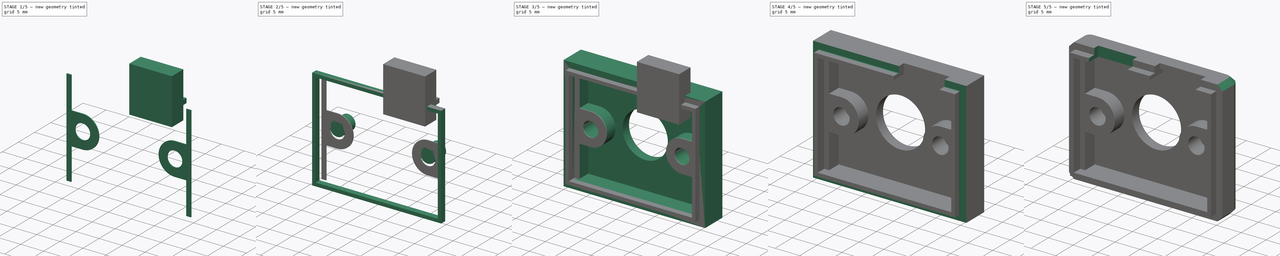
[diagram: build sequence overview — one tinted view per stage of 5, left to right]
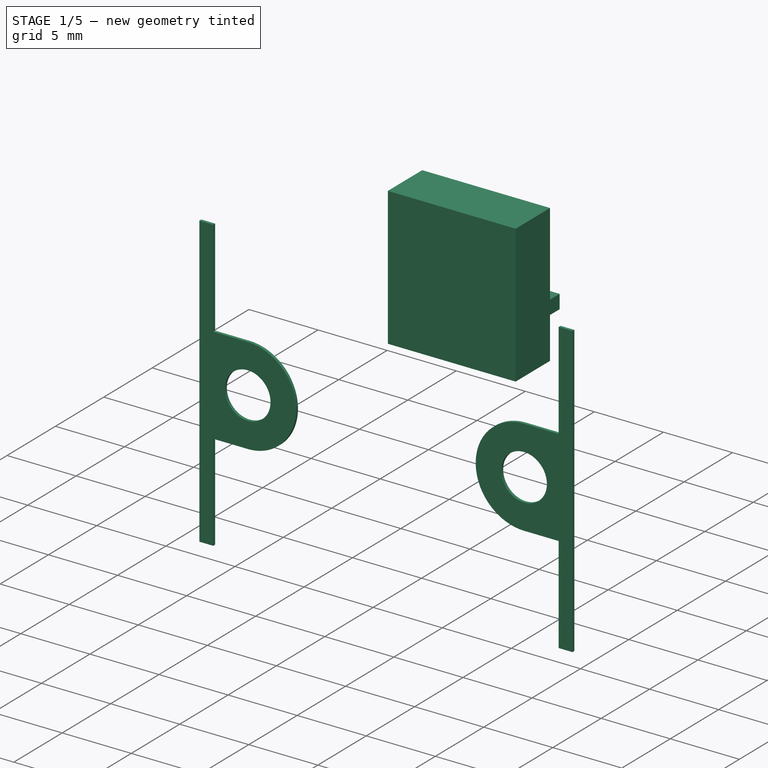
[diagram: stage 1 of 5 — iso view after this stage's code; geometry added in this stage tinted green]
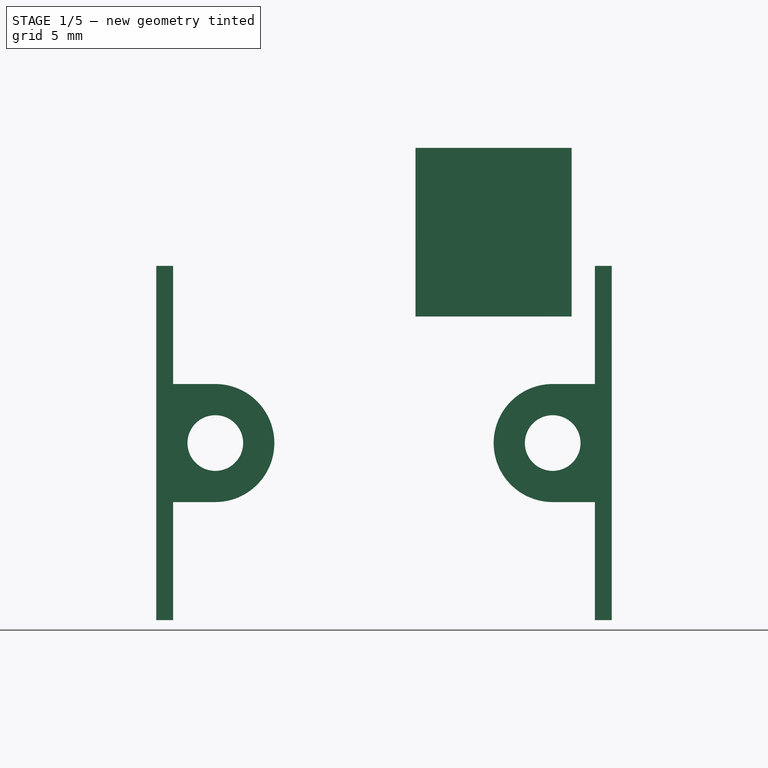
[diagram: stage 1 of 5 — front view after this stage's code; geometry added in this stage tinted green]
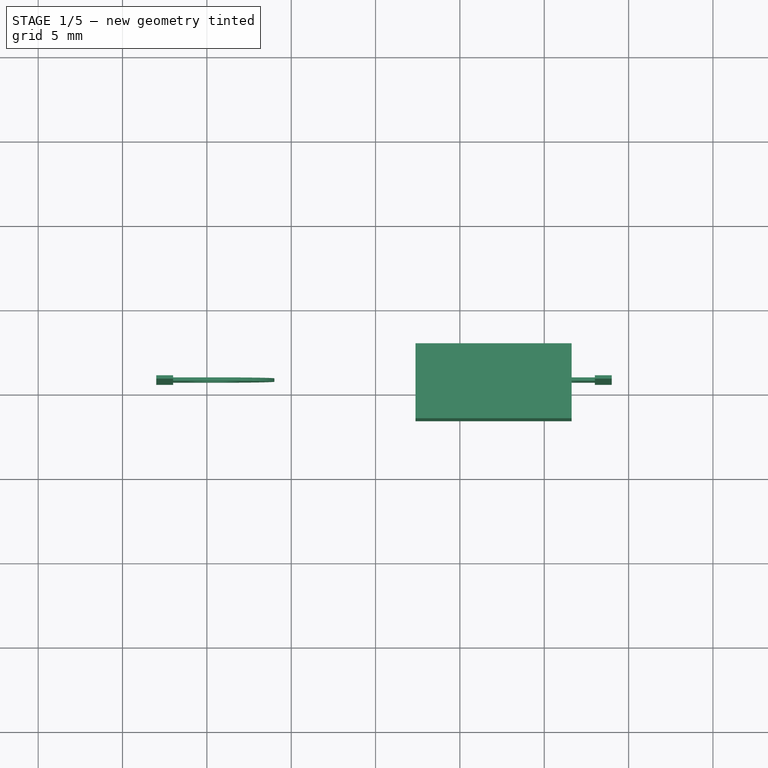
[diagram: stage 1 of 5 — top view after this stage's code; geometry added in this stage tinted green]
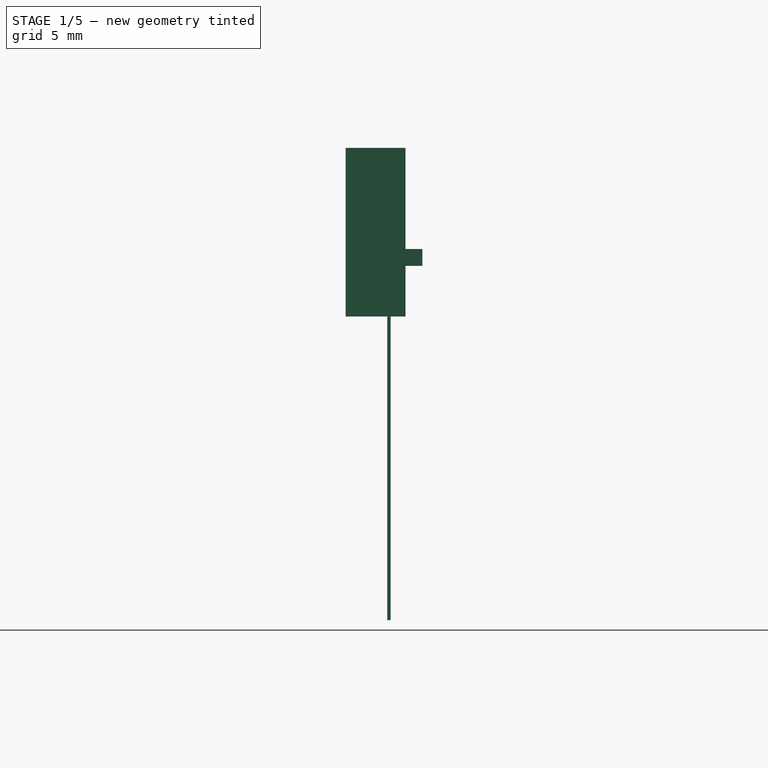
[diagram: stage 1 of 5 — right view after this stage's code; geometry added in this stage tinted green]
FCSTD DOCUMENT  (FreeCAD 0.18R16110 (Git))
Label: housing_v5_front
License: All rights reserved
LicenseURL: http://en.wikipedia.org/wiki/All_rights_reserved
objects: Part::Box×9, Part::Cut×7, Part::Feature×6, Sketcher::SketchObject×5, Part::MultiFuse×4, Part::Extrusion×4, PartDesign::Pad×3, PartDesign::Pocket×2, Part::Cylinder×2, PartDesign::Body×1, Part::Fillet×1, Part::Chamfer×1
note: 50 computed .brp shape members not serialized (recipe doc carries the construction recipe); baked Part::Feature solids carry a one-line shape summary decoded from their .brp

FEATURE [Part::Box] Box005  label="TypeC_cutout"
  AttacherType = Attacher::AttachEngine3D
  Height = 10
  Length = 9.25
  Placement = pos=(17.37,-0.87,20) rot=(0,0,1;0rad)
  Width = 2.55
FEATURE [Part::Box] Box008  label="TypeC_cutout_upper"
  AttacherType = Attacher::AttachEngine3D
  Height = 10
  Length = 9.25
  Placement = pos=(17.37,-1.87,20) rot=(0,0,1;0rad)
  Width = 2.55
FEATURE [Part::Box] Box  label="TypeC_extra_space"
  AttacherType = Attacher::AttachEngine3D
  Height = 1
  Length = 9.25
  Placement = pos=(17.37,1.68,23) rot=(0,0,1;0rad)
  Width = 1
FEATURE [Part::Feature] Face
  shape: bbox 6 x 2e-07 x 7 mm, 1 faces, 0 solids (baked)
FEATURE [Part::Feature] Face001
  shape: bbox 1 x 2e-07 x 21 mm, 1 faces, 0 solids (baked)
FEATURE [Part::Feature] Face002
  shape: bbox 6 x 2e-07 x 7 mm, 1 faces, 0 solids (baked)
FEATURE [Part::Feature] Face003
  shape: bbox 1 x 2e-07 x 21 mm, 1 faces, 0 solids (baked)
FEATURE [Part::Extrusion] Extrusion
  Base = -> Face
  Dir = (0,-0.2,-2.08e-14)
  DirMode = 0
  FaceMakerClass = Part::FaceMakerBullseye
  LengthFwd = 0
  LengthRev = 0
  Solid = true
  Symmetric = false
FEATURE [Part::Extrusion] Extrusion001
  Base = -> Face001
  Dir = (0,-0.2,-2.08e-14)
  DirMode = 0
  FaceMakerClass = Part::FaceMakerBullseye
  LengthFwd = 0
  LengthRev = 0
  Solid = true
  Symmetric = false
FEATURE [Part::Feature] Face004
  shape: bbox 6 x 2e-07 x 7 mm, 1 faces, 0 solids (baked)
FEATURE [Part::Extrusion] Extrusion002
  Base = -> Face004
  Dir = (0,-0.2,-2.08e-14)
  DirMode = 0
  FaceMakerClass = Part::FaceMakerBullseye
  LengthFwd = 0
  LengthRev = 0
  Solid = true
  Symmetric = false
FEATURE [Part::Feature] Face005
  shape: bbox 1 x 2e-07 x 21 mm, 1 faces, 0 solids (baked)
FEATURE [Part::Extrusion] Extrusion003
  Base = -> Face005
  Dir = (0,-0.2,-2.08e-14)
  DirMode = 0
  FaceMakerClass = Part::FaceMakerBullseye
  LengthFwd = 0
  LengthRev = 0
  Solid = true
  Symmetric = false
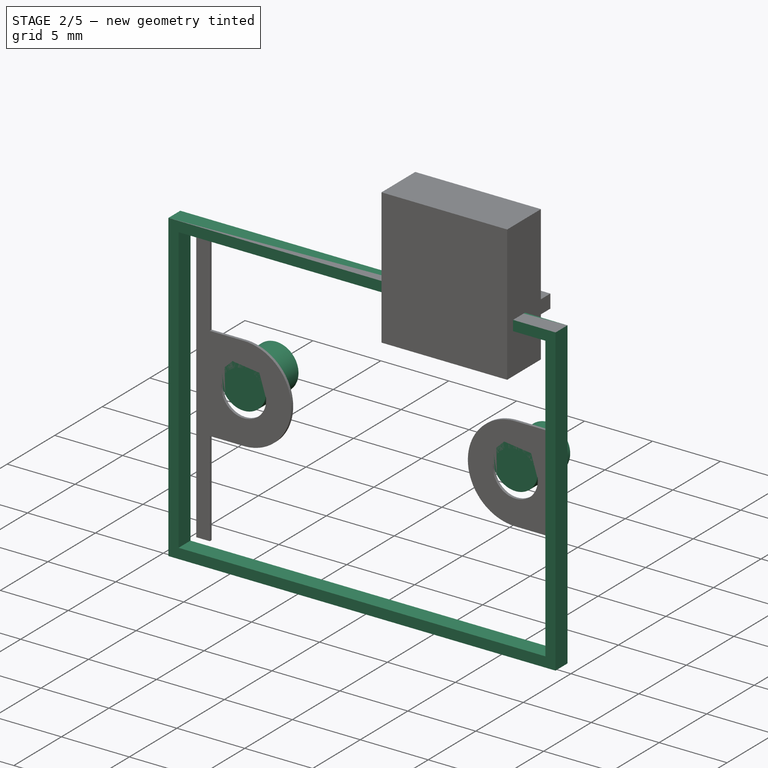
[diagram: stage 2 of 5 — iso view after this stage's code; geometry added in this stage tinted green]
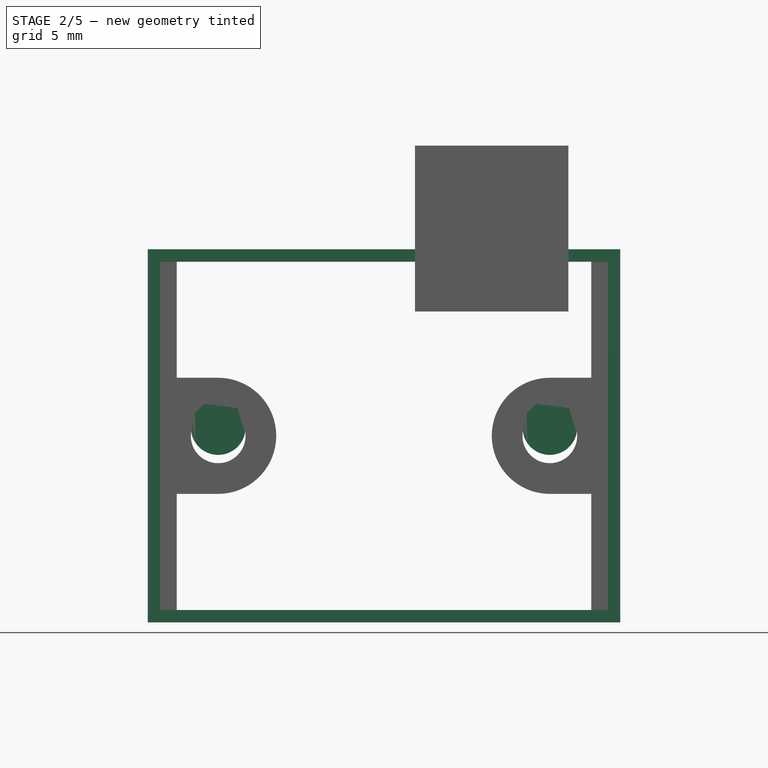
[diagram: stage 2 of 5 — front view after this stage's code; geometry added in this stage tinted green]
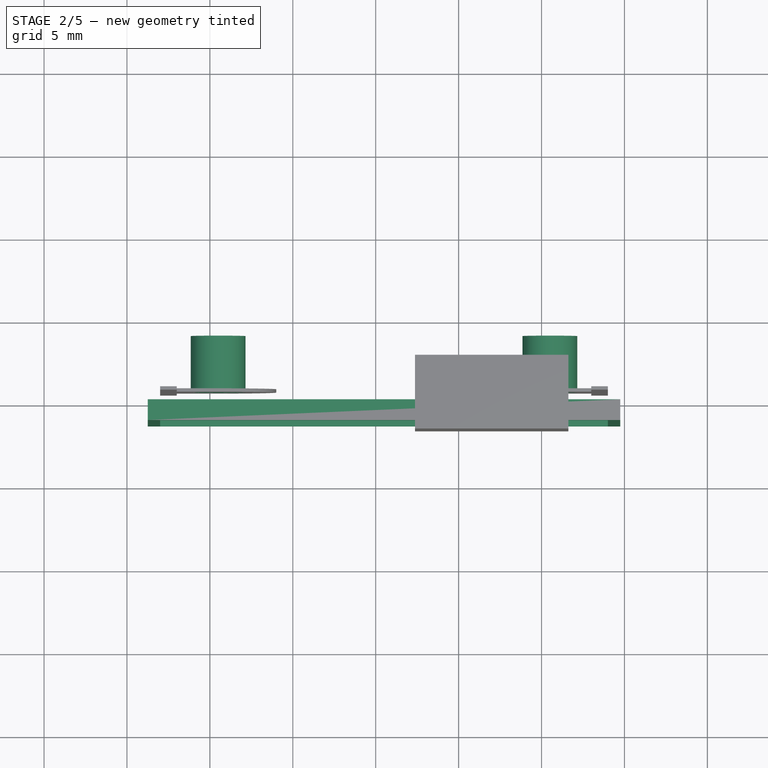
[diagram: stage 2 of 5 — top view after this stage's code; geometry added in this stage tinted green]
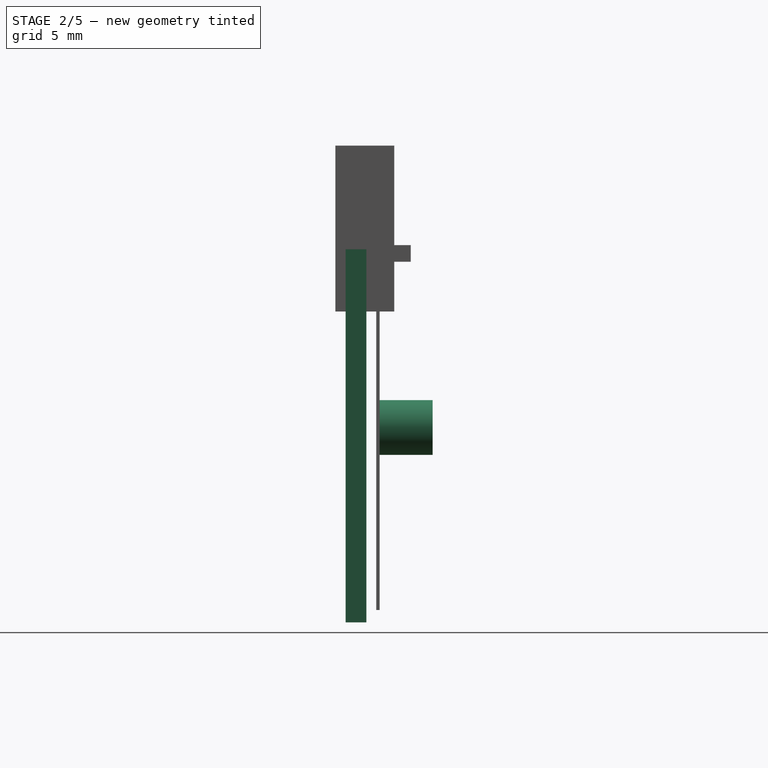
[diagram: stage 2 of 5 — right view after this stage's code; geometry added in this stage tinted green]
FEATURE [PartDesign::Body] Body
  Group = -> [Sketch,Sketch001,Sketch002,Sketch003,Sketch004,Pad,Pocket,Pad001,Pad002,Pocket001]
  Origin = -> Origin
  Tip = -> Pocket001
FEATURE [Part::Cylinder] Cylinder  label="leftScrewHole"
  Angle = 360
  AttacherType = Attacher::AttachEngine3D
  Height = 3.4
  Placement = pos=(25.5,4,13) rot=(1,0,0;1.5708rad)
  Radius = 1.65
FEATURE [Part::Cylinder] Cylinder001  label="rightScrewHole"
  Angle = 360
  AttacherType = Attacher::AttachEngine3D
  Height = 3.4
  Placement = pos=(5.5,4,13) rot=(1,0,0;1.5708rad)
  Radius = 1.65
FEATURE [Part::Box] Box001  label="Cube001"
  AttacherType = Attacher::AttachEngine3D
  Height = 22.5
  Length = 28.5
  Placement = pos=(1.25,0,1.25) rot=(0,0,1;0rad)
  Width = 1.25
FEATURE [Part::Box] Box002  label="Cube002"
  AttacherType = Attacher::AttachEngine3D
  Height = 21
  Length = 27
  Placement = pos=(2,0,2) rot=(0,0,1;0rad)
  Width = 1.25
FEATURE [Part::Cut] Cut001  label="latch"
  Base = -> Box001
  Placement = pos=(0,-1.25,0) rot=(0,0,1;0rad)
  Tool = -> Box002
FEATURE [Part::MultiFuse] Fusion002
  Shapes = -> [Box005,Box008]
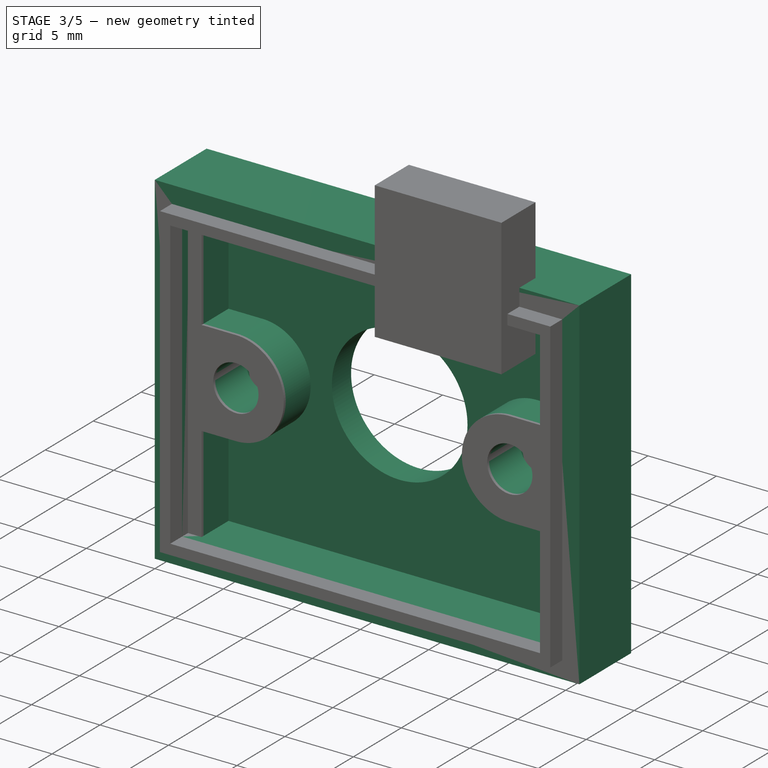
[diagram: stage 3 of 5 — iso view after this stage's code; geometry added in this stage tinted green]
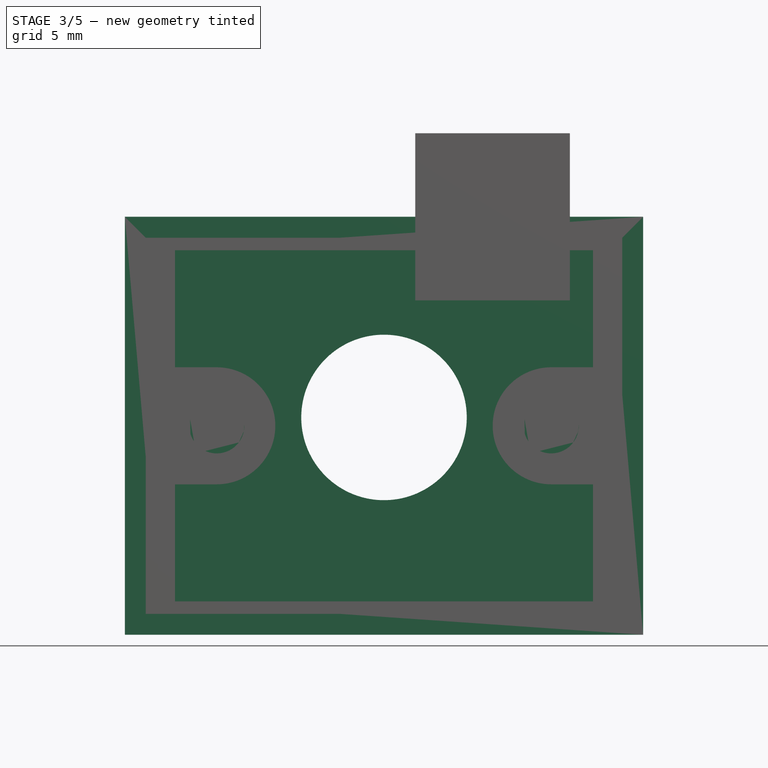
[diagram: stage 3 of 5 — front view after this stage's code; geometry added in this stage tinted green]
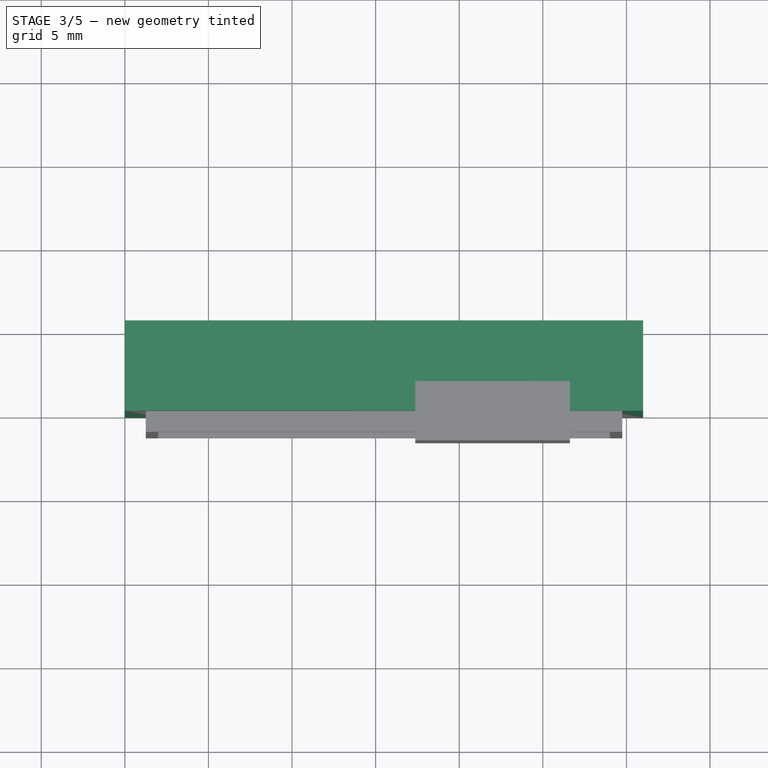
[diagram: stage 3 of 5 — top view after this stage's code; geometry added in this stage tinted green]
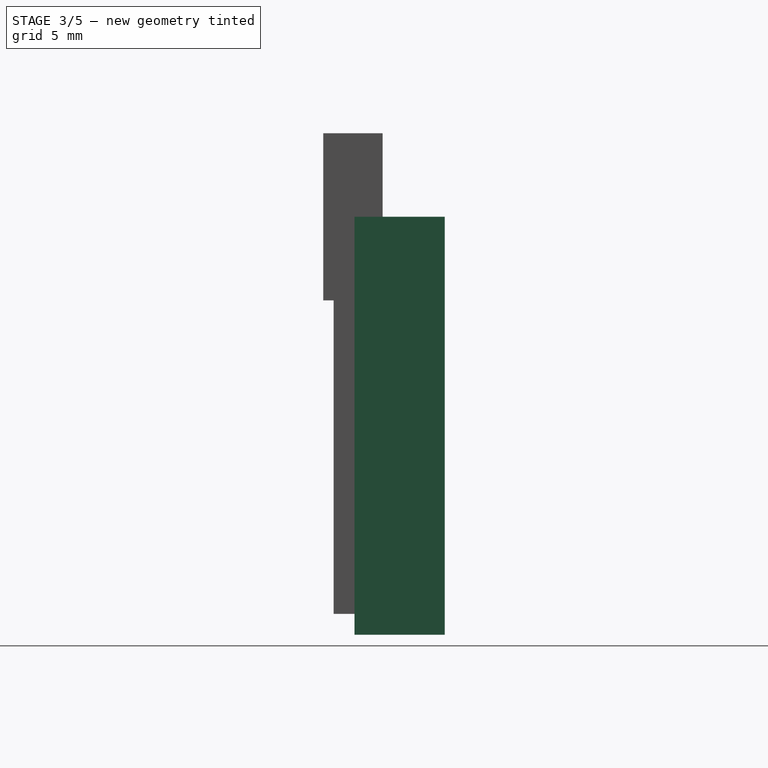
[diagram: stage 3 of 5 — right view after this stage's code; geometry added in this stage tinted green]
FEATURE [Sketcher::SketchObject] Sketch  label="frame"
  MapMode = 5
  Placement = pos=(0,0,0) rot=(1,0,0;1.5708rad)
  Support = -> [XZ_Plane]
  sketch-geometry (4):
    g0: LineSegment StartX=0 StartY=0 StartZ=0 EndX=31 EndY=0 EndZ=0
    g1: LineSegment StartX=31 StartY=0 StartZ=0 EndX=31 EndY=25 EndZ=0
    g2: LineSegment StartX=31 StartY=25 StartZ=0 EndX=0 EndY=25 EndZ=0
    g3: LineSegment StartX=0 StartY=25 StartZ=0 EndX=0 EndY=0 EndZ=0
  constraints (13):
    c: Coincident(g0,g1)
    c: Coincident(g1,g2)
    c: Coincident(g2,g3)
    c: Coincident(g3,g0)
    c: Horizontal(g0)
    c: Horizontal(g2)
    c: Vertical(g1)
    c: Vertical(g3)
    c: Coincident(g0,g-1)
    c: Equal(g2,g0)
    c: Equal(g3,g1)
    c: DistanceY(g3,g3) = 25
    c: DistanceX(g0,g0) = 31
FEATURE [Sketcher::SketchObject] Sketch001  label="pcbSideStands"
  AttachmentOffset = pos=(0,0,-3.4) rot=(0,0,1;0rad)
  MapMode = 5
  Placement = pos=(0,3.4,3.518e-13) rot=(1,0,0;1.5708rad)
  Support = -> [XZ_Plane]
  sketch-geometry (8):
    g0: LineSegment StartX=29 StartY=2 StartZ=0 EndX=29 EndY=23 EndZ=0
    g1: LineSegment StartX=2 StartY=23 StartZ=0 EndX=2 EndY=2 EndZ=0
    g2: LineSegment StartX=3 StartY=23 StartZ=0 EndX=3 EndY=2 EndZ=0
    g3: LineSegment StartX=28 StartY=23 StartZ=0 EndX=28 EndY=2 EndZ=0
    g4: LineSegment StartX=2 StartY=23 StartZ=0 EndX=3 EndY=23 EndZ=0
    g5: LineSegment StartX=2 StartY=2 StartZ=0 EndX=3 EndY=2 EndZ=0
    g6: LineSegment StartX=28 StartY=23 StartZ=0 EndX=29 EndY=23 EndZ=0
    g7: LineSegment StartX=28 StartY=2 StartZ=0 EndX=29 EndY=2 EndZ=0
  constraints (24):
    c: Vertical(g0)
    c: Vertical(g1)
    c: Equal(g1,g0)
    c: DistanceX(g1,g0) = 27
    c: DistanceY(g1,g1) = 21
    c: Vertical(g2)
    c: Vertical(g3)
    c: Distance(g2,g1) = 1
    c: Distance(g3,g0) = 1
    c: Horizontal(g4)
    c: Coincident(g4,g1)
    c: Coincident(g4,g2)
    c: Horizontal(g5)
    c: Coincident(g1,g5)
    c: Coincident(g2,g5)
    c: Horizontal(g6)
    c: Horizontal(g7)
    c: Coincident(g3,g6)
    c: Coincident(g0,g6)
    c: Coincident(g3,g7)
    c: Coincident(g0,g7)
    c: DistanceX(g-2,g1) = 2
    c: DistanceY(g-1,g1) = 2
    c: DistanceY(g2,g3) = 0
FEATURE [Sketcher::SketchObject] Sketch002  label="pcbStandoffs"
  AttachmentOffset = pos=(0,0,-3.4) rot=(0,0,1;0rad)
  MapMode = 5
  Placement = pos=(0,3.4,3.518e-13) rot=(1,0,0;1.5708rad)
  Support = -> [XZ_Plane]
  sketch-geometry (8):
    g0: LineSegment StartX=3 StartY=16 StartZ=0 EndX=5.5 EndY=16 EndZ=0
    g1: LineSegment StartX=3 StartY=9 StartZ=0 EndX=5.5 EndY=9 EndZ=0
    g2: LineSegment StartX=25.5 StartY=16 StartZ=0 EndX=28 EndY=16 EndZ=0
    g3: LineSegment StartX=25.5 StartY=9 StartZ=0 EndX=28 EndY=9 EndZ=0
    g4: LineSegment StartX=3 StartY=16 StartZ=0 EndX=3 EndY=9 EndZ=0
    g5: LineSegment StartX=28 StartY=16 StartZ=0 EndX=28 EndY=9 EndZ=0
    g6: ArcOfCircle CenterX=5.5 CenterY=12.5 CenterZ=0 NormalX=0 NormalY=0 NormalZ=1 AngleXU=0 Radius=3.5 StartAngle=4.71239 EndAngle=7.85398
    g7: ArcOfCircle CenterX=25.5 CenterY=12.5 CenterZ=0 NormalX=0 NormalY=0 NormalZ=1 AngleXU=0 Radius=3.5 StartAngle=1.5708 EndAngle=4.71239
  constraints (26):
    c: Horizontal(g0)
    c: DistanceX(g0,g0) = 2.5
    c: Horizontal(g1)
    c: Equal(g0,g1) = 2.5
    c: DistanceX(g2,g2) = 2.5
    c: Horizontal(g2)
    c: Horizontal(g3)
    c: DistanceX(g3,g3) = 2.5
    c: Coincident(g4,g0)
    c: Vertical(g4)
    c: Coincident(g5,g2)
    c: Coincident(g5,g3)
    c: Vertical(g5)
    c: Coincident(g4,g1)
    c: Coincident(g6,g0)
    c: Coincident(g6,g1)
    c: Coincident(g7,g2)
    c: Coincident(g7,g3)
    c: DistanceX(g6,g7) = 20
    c: DistanceX(g-2,g1) = 3
    c: DistanceY(g4,g4) = 7
    c: Equal(g5,g4)
    c: Distance(g6,g4) = 2.5
    c: DistanceY(g7,g6) = 0
    c: Distance(g7,g5) = 2.5
    c: DistanceY(g-1,g6) = 12.5
FEATURE [Sketcher::SketchObject] Sketch004  label="irCutOut"
  MapMode = 5
  Placement = pos=(0,0,0) rot=(1,0,0;1.5708rad)
  Support = -> [XZ_Plane]
  sketch-geometry (1):
    g0: Circle CenterX=15.5 CenterY=13 CenterZ=0 NormalX=0 NormalY=0 NormalZ=1 AngleXU=0 Radius=4.95
  constraints (1):
    c: Radius(g0) = 4.95
FEATURE [Sketcher::SketchObject] Sketch003  label="innerCut"
  MapMode = 5
  Placement = pos=(0,0,0) rot=(1,0,0;1.5708rad)
  Support = -> [XZ_Plane]
  sketch-geometry (4):
    g0: LineSegment StartX=2 StartY=2 StartZ=0 EndX=29 EndY=2 EndZ=0
    g1: LineSegment StartX=29 StartY=2 StartZ=0 EndX=29 EndY=23 EndZ=0
    g2: LineSegment StartX=29 StartY=23 StartZ=0 EndX=2 EndY=23 EndZ=0
    g3: LineSegment StartX=2 StartY=23 StartZ=0 EndX=2 EndY=2 EndZ=0
  constraints (14):
    c: Coincident(g0,g1)
    c: Coincident(g1,g2)
    c: Coincident(g2,g3)
    c: Coincident(g3,g0)
    c: Horizontal(g0)
    c: Horizontal(g2)
    c: Vertical(g1)
    c: Vertical(g3)
    c: Equal(g2,g0)
    c: Equal(g3,g1)
    c: DistanceX(g0,g0) = 27
    c: DistanceY(g3,g3) = 21
    c: DistanceX(g-2,g0) = 2
    c: DistanceY(g-1,g0) = 2
FEATURE [PartDesign::Pad] Pad
  Length = 5.4
  Length2 = 100
  Placement = pos=(0,0,0) rot=(1,0,0;1.5708rad)
  Profile = -> Sketch
  Reversed = true
  Type = 0
FEATURE [PartDesign::Pocket] Pocket
  BaseFeature = -> Pad
  Length = 3.4
  Length2 = 100
  Placement = pos=(0,0,0) rot=(1,0,0;1.5708rad)
  Profile = -> Sketch003
  Type = 0
FEATURE [PartDesign::Pad] Pad001
  BaseFeature = -> Pocket
  Length = 2.6
  Length2 = 100
  Placement = pos=(0,0,0) rot=(1,0,0;1.5708rad)
  Profile = -> Sketch001
  Type = 0
FEATURE [PartDesign::Pad] Pad002
  BaseFeature = -> Pad001
  Length = 2.6
  Length2 = 100
  Placement = pos=(0,0,0) rot=(1,0,0;1.5708rad)
  Profile = -> Sketch002
  Type = 0
FEATURE [PartDesign::Pocket] Pocket001
  BaseFeature = -> Pad002
  Length = 11
  Length2 = 100
  Placement = pos=(0,0,0) rot=(1,0,0;1.5708rad)
  Profile = -> Sketch004
  Type = 0
FEATURE [Part::MultiFuse] Fusion001  label="screwHoleCutout"
  Placement = pos=(0,0,-0.5) rot=(0,0,1;0rad)
  Shapes = -> [Cylinder001,Cylinder]
FEATURE [Part::Cut] Cut  label="case"
  Base = -> Body
  Tool = -> Fusion001
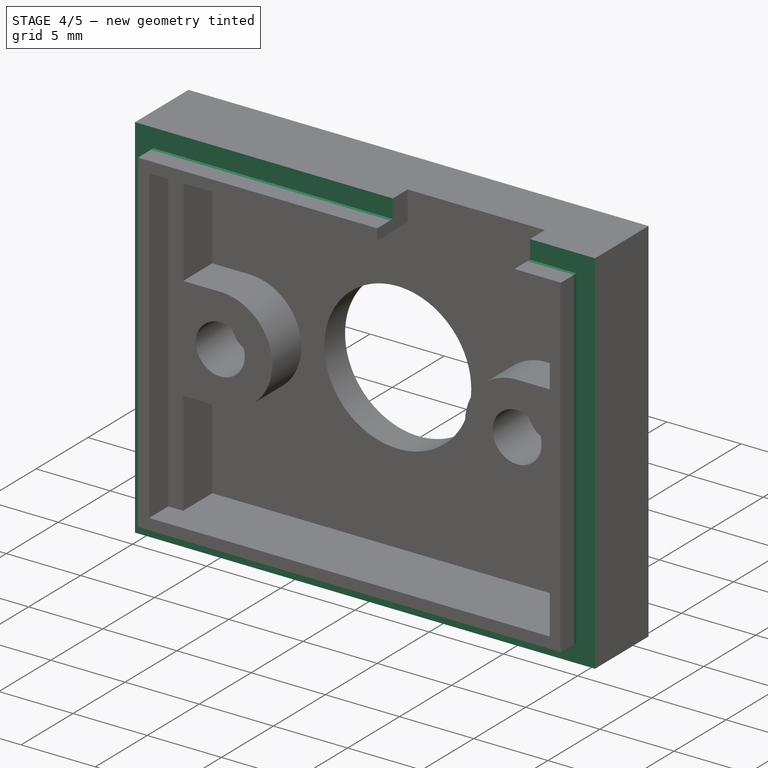
[diagram: stage 4 of 5 — iso view after this stage's code; geometry added in this stage tinted green]
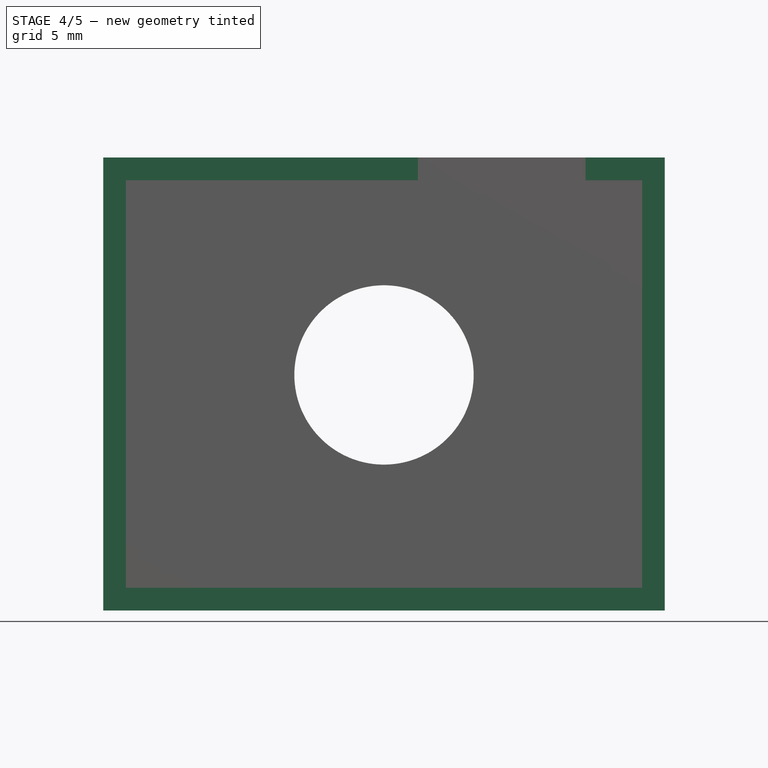
[diagram: stage 4 of 5 — front view after this stage's code; geometry added in this stage tinted green]
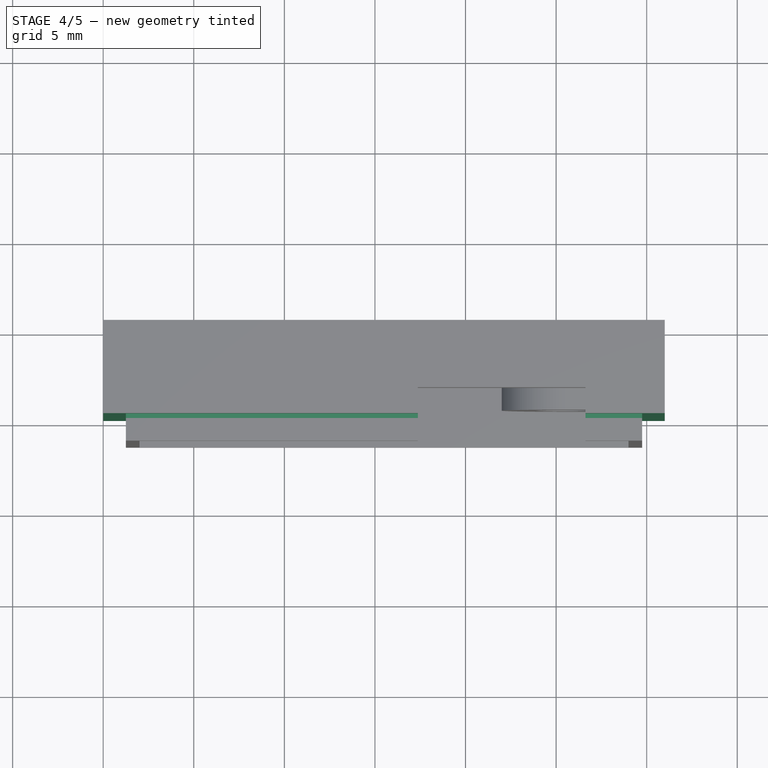
[diagram: stage 4 of 5 — top view after this stage's code; geometry added in this stage tinted green]
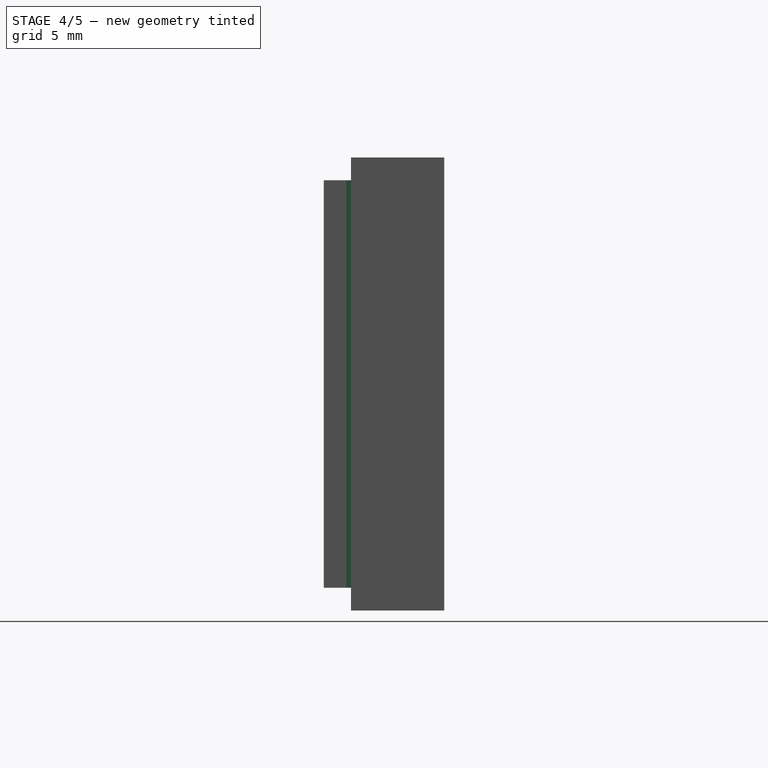
[diagram: stage 4 of 5 — right view after this stage's code; geometry added in this stage tinted green]
FEATURE [Part::Box] Box003  label="Cube003"
  AttacherType = Attacher::AttachEngine3D
  Height = 25
  Length = 31
  Width = 0.25
FEATURE [Part::Box] Box004  label="Cube004"
  AttacherType = Attacher::AttachEngine3D
  Height = 22.5
  Length = 28.5
  Placement = pos=(1.25,0,1.25) rot=(0,0,1;0rad)
  Width = 0.25
FEATURE [Part::Cut] Cut002
  Base = -> Box003
  Tool = -> Box004
FEATURE [Part::MultiFuse] Fusion
  Shapes = -> [Cut,Cut001]
FEATURE [Part::Cut] Cut003  label="frontCaseWithEdge"
  Base = -> Fusion
  Tool = -> Cut002
FEATURE [Part::Cut] Cut004
  Base = -> Cut003
  Tool = -> Fusion002
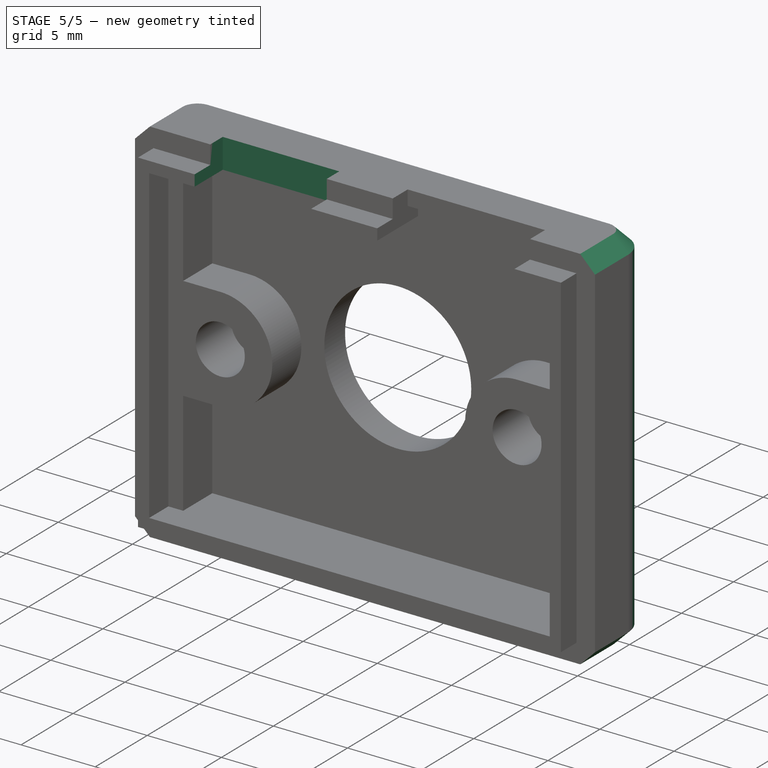
[diagram: stage 5 of 5 — iso view after this stage's code; geometry added in this stage tinted green]
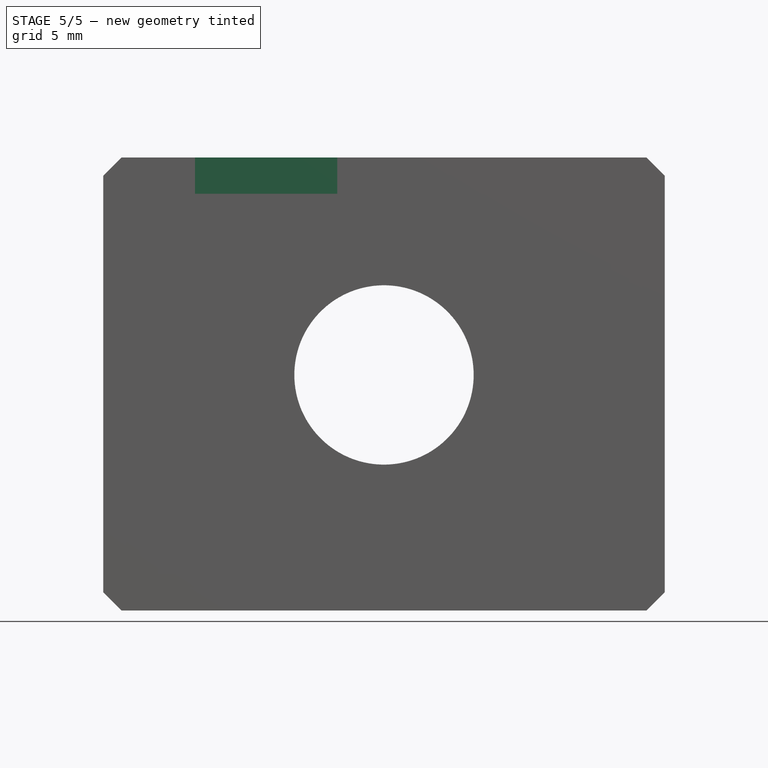
[diagram: stage 5 of 5 — front view after this stage's code; geometry added in this stage tinted green]
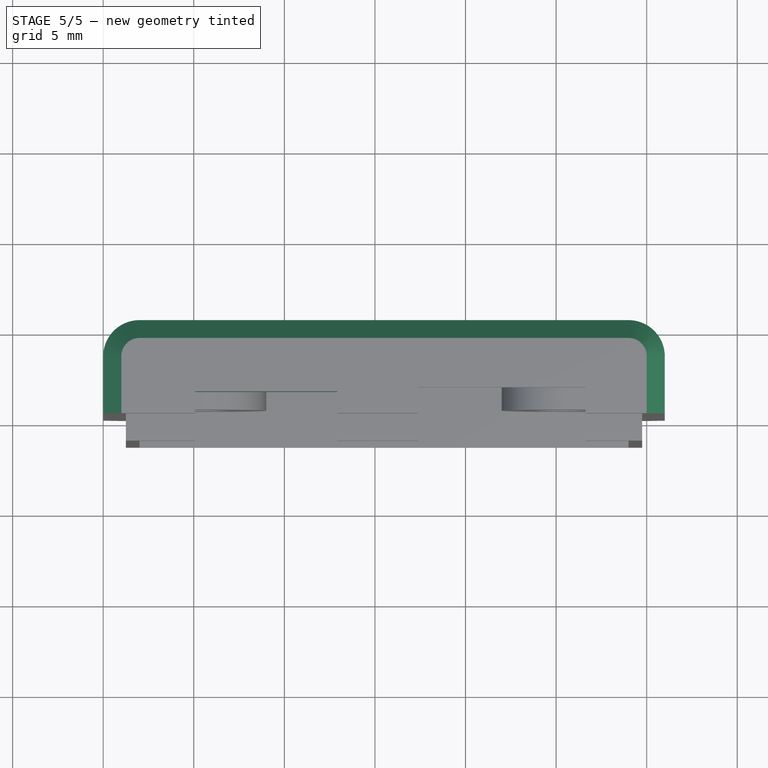
[diagram: stage 5 of 5 — top view after this stage's code; geometry added in this stage tinted green]
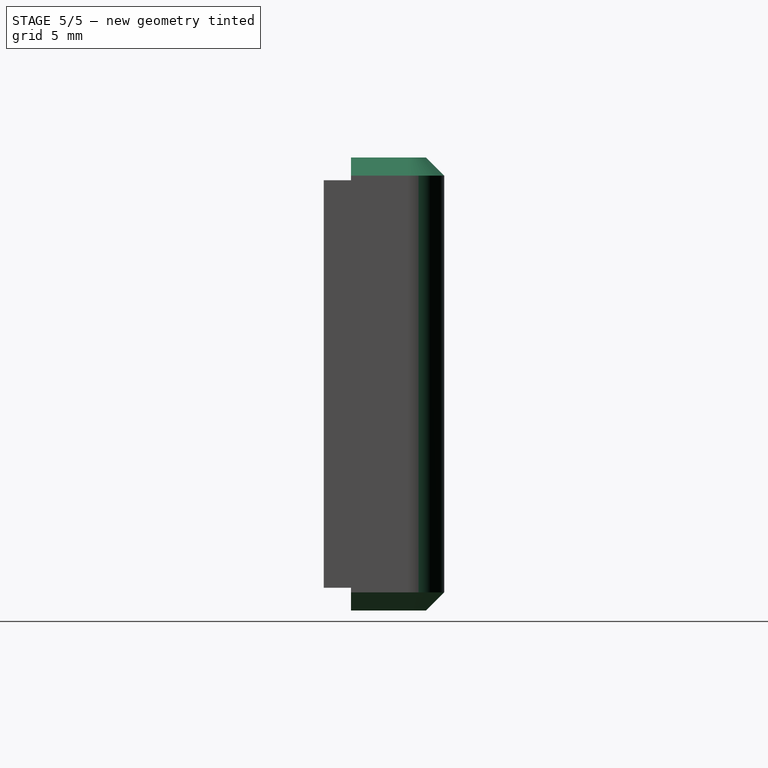
[diagram: stage 5 of 5 — right view after this stage's code; geometry added in this stage tinted green]
FEATURE [Part::Box] Box006  label="Micro_cutout"
  AttacherType = Attacher::AttachEngine3D
  Height = 10
  Length = 7.85
  Placement = pos=(5.07,-0.65,20) rot=(0,0,1;0rad)
  Width = 2.1
FEATURE [Part::Box] Box007  label="Micro_cutout_upper"
  AttacherType = Attacher::AttachEngine3D
  Height = 10
  Length = 7.85
  Placement = pos=(5.07,-1.65,20) rot=(0,0,1;0rad)
  Width = 2.1
FEATURE [Part::MultiFuse] Fusion003
  Shapes = -> [Box006,Box007]
FEATURE [Part::Cut] Cut005
  Base = -> Cut004
  Tool = -> Fusion003
FEATURE [Part::Fillet] Fillet001
  Base = -> Cut005
  Edges = 2 edges r=2: [Edge17,Edge18]
FEATURE [Part::Chamfer] Chamfer
  Base = -> Fillet001
  Edges = 10 edges r=1: [Edge1,Edge2,Edge4,Edge5,Edge6,Edge7,Edge11,Edge23,Edge26,Edge27]
FEATURE [Part::Cut] Cut006
  Base = -> Chamfer
  Tool = -> Box
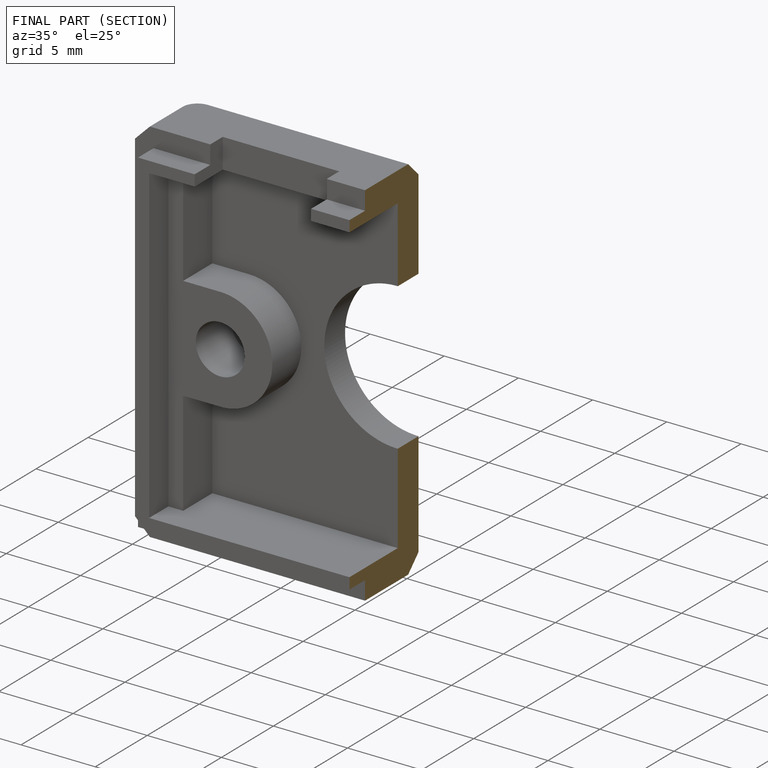
[diagram: finished part — half-section view (interior)]
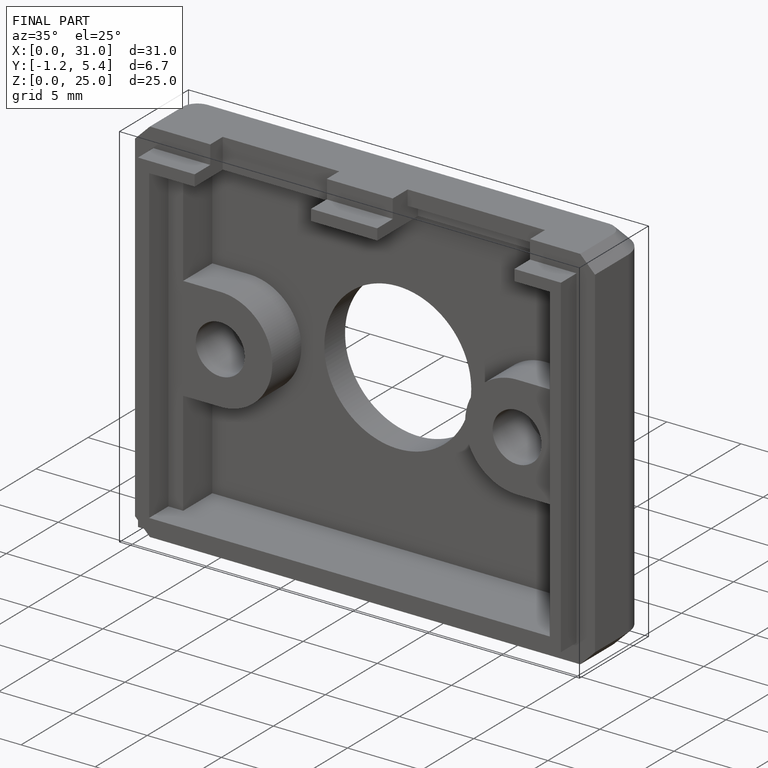
[diagram: finished part — iso view with bounding-box wireframe]
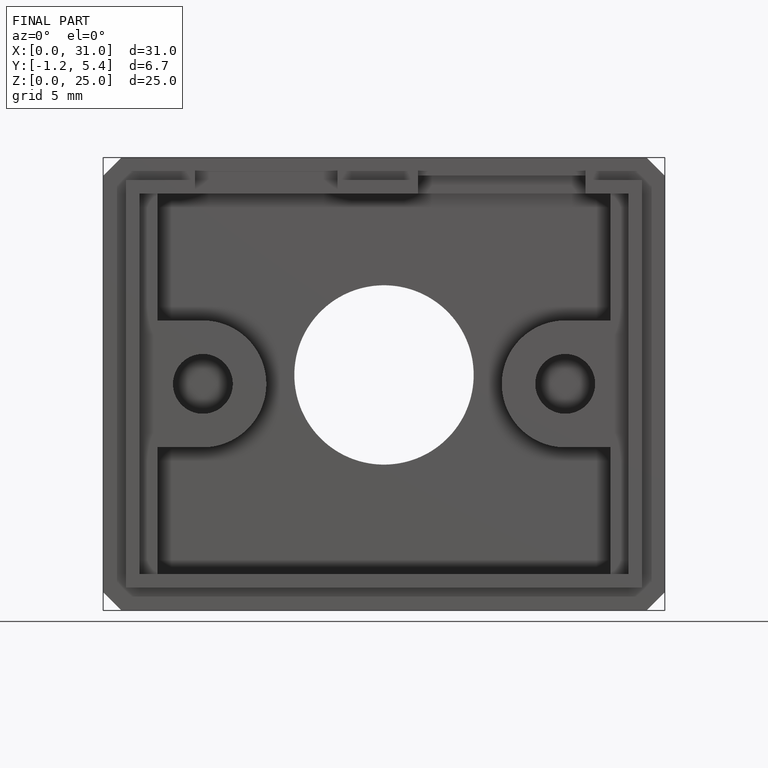
[diagram: finished part — front view with bounding-box wireframe]
